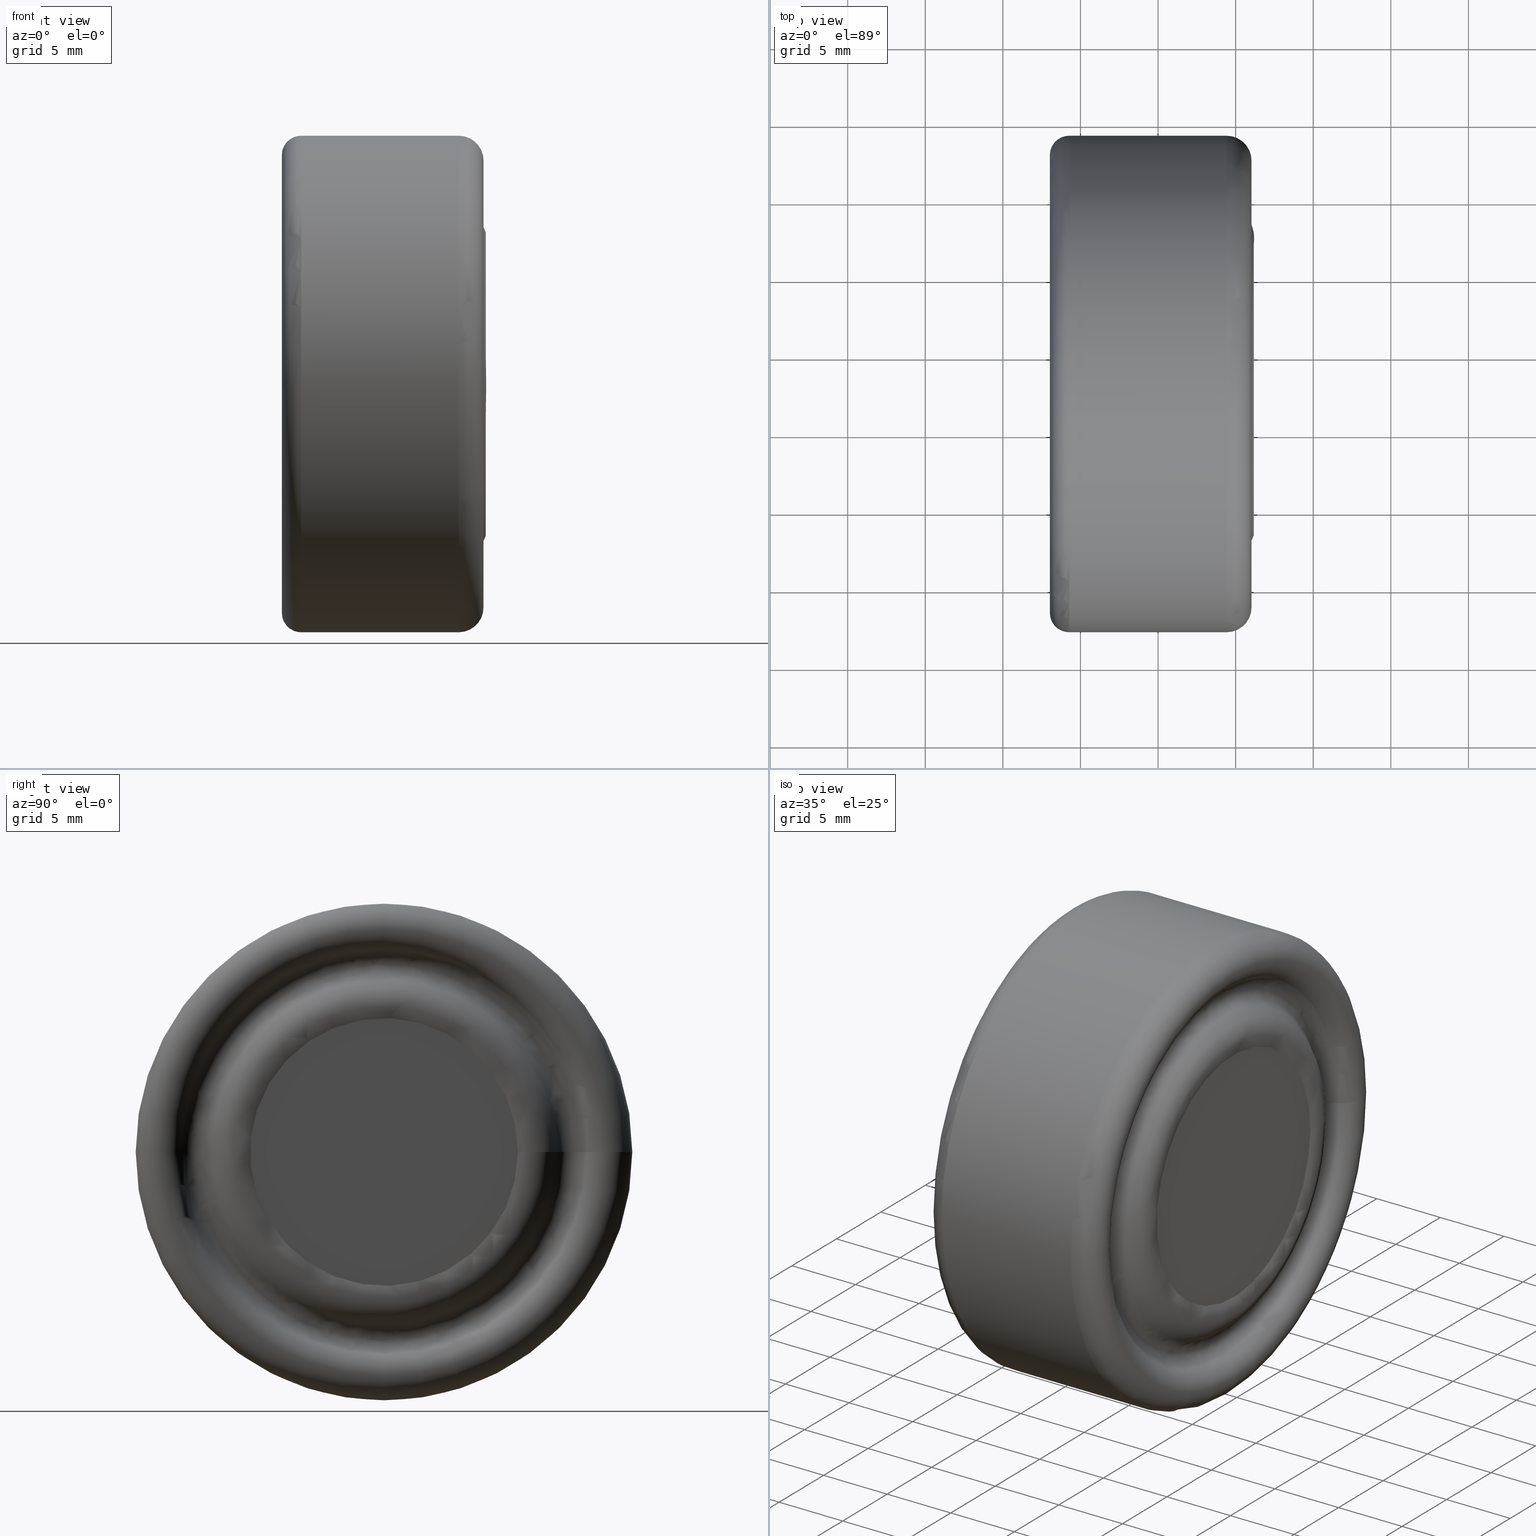
[diagram: canonical four-view strip — front | top / right | iso, engineering-drawing reading convention]
A machine part, canonical four-view strip (front | top / right | iso — engineering-drawing reading convention). The complete STEP part file that produces these views, byte-faithful:
ISO-10303-21;
HEADER;
/****************************************************************
 * Generated by software with PDE/Lib inside                    *
 * PDElib Version v51a, created Thu 12/14/2006                  *
 * International Technegroup Inc. (www.iti-oh.com)              *
 ****************************************************************/
FILE_DESCRIPTION((''),'2;1');
FILE_NAME('M:\\cad\\1PB\\2BTx\\2BTx.stp','2007-11-15T11:37:00',('Philipp'),(''),'Autodesk Inventor 2008','Autodesk Inventor 2008','');
FILE_SCHEMA(('AUTOMOTIVE_DESIGN { 1 0 10303 214 1 1 1 1 }'));
ENDSEC;
DATA;
#5=APPLICATION_CONTEXT('automotive design');
#6=APPLICATION_PROTOCOL_DEFINITION('International Standard','automotive_design',2001,#5);
#7=PRODUCT_CONTEXT('',#5,'mechanical');
#8=PRODUCT('2BT4_new_version','2BT4_new_version',$,(#7));
#9=PRODUCT_RELATED_PRODUCT_CATEGORY('part',$,(#8));
#10=PRODUCT_DEFINITION_FORMATION('',$,#8);
#11=PRODUCT_DEFINITION_CONTEXT('part definition',#5,'design');
#12=PRODUCT_DEFINITION('',$,#10,#11);
#18=(NAMED_UNIT(*)PLANE_ANGLE_UNIT()SI_UNIT($,.RADIAN.));
#19=DIMENSIONAL_EXPONENTS(0.0,0.0,0.0,0.0,0.0,0.0,0.0);
#20=PLANE_ANGLE_MEASURE_WITH_UNIT(PLANE_ANGLE_MEASURE(0.017453292500000),#18);
#24=(CONVERSION_BASED_UNIT('DEGREE',#20)NAMED_UNIT(#19)PLANE_ANGLE_UNIT());
#28=(NAMED_UNIT(*)SI_UNIT($,.STERADIAN.)SOLID_ANGLE_UNIT());
#32=(LENGTH_UNIT()NAMED_UNIT(*)SI_UNIT(.MILLI.,.METRE.));
#34=UNCERTAINTY_MEASURE_WITH_UNIT(LENGTH_MEASURE(0.010000000000000),#32,'DISTANCE_ACCURACY_VALUE','');
#36=(GEOMETRIC_REPRESENTATION_CONTEXT(3)GLOBAL_UNCERTAINTY_ASSIGNED_CONTEXT((#34))GLOBAL_UNIT_ASSIGNED_CONTEXT((#24,#28,#32))REPRESENTATION_CONTEXT('None','None'));
#37=AXIS2_PLACEMENT_3D('',#38,#39,#40);
#38=CARTESIAN_POINT('',(0.0,0.0,0.0));
#39=DIRECTION('',(0.0,0.0,1.0));
#40=DIRECTION('',(1.0,0.0,0.0));
#41=SHAPE_REPRESENTATION('',(#37),#36);
#42=PRODUCT_DEFINITION_SHAPE('','',#12);
#43=SHAPE_DEFINITION_REPRESENTATION(#42,#41);
#49=(NAMED_UNIT(*)PLANE_ANGLE_UNIT()SI_UNIT($,.RADIAN.));
#50=DIMENSIONAL_EXPONENTS(0.0,0.0,0.0,0.0,0.0,0.0,0.0);
#51=PLANE_ANGLE_MEASURE_WITH_UNIT(PLANE_ANGLE_MEASURE(0.017453292500000),#49);
#55=(CONVERSION_BASED_UNIT('DEGREE',#51)NAMED_UNIT(#50)PLANE_ANGLE_UNIT());
#59=(NAMED_UNIT(*)SI_UNIT($,.STERADIAN.)SOLID_ANGLE_UNIT());
#63=(LENGTH_UNIT()NAMED_UNIT(*)SI_UNIT(.MILLI.,.METRE.));
#65=UNCERTAINTY_MEASURE_WITH_UNIT(LENGTH_MEASURE(0.000001000000000),#63,'DISTANCE_ACCURACY_VALUE','');
#67=(GEOMETRIC_REPRESENTATION_CONTEXT(3)GLOBAL_UNCERTAINTY_ASSIGNED_CONTEXT((#65))GLOBAL_UNIT_ASSIGNED_CONTEXT((#55,#59,#63))REPRESENTATION_CONTEXT('','3D'));
#68=CARTESIAN_POINT('',(-0.582194819326649,3.167852655892098,0.0));
#69=DIRECTION('',(1.0,0.0,0.0));
#70=DIRECTION('',(0.0,0.0,-1.0));
#71=AXIS2_PLACEMENT_3D('',#68,#69,#70);
#72=TOROIDAL_SURFACE('',#71,14.391780379672067,1.608219620327933);
#73=CARTESIAN_POINT('',(0.160736446440259,16.133300857719991,0.0));
#74=VERTEX_POINT('',#73);
#75=CARTESIAN_POINT('',(0.160736446440259,3.167852655892097,0.0));
#76=DIRECTION('',(1.0,0.0,0.0));
#77=DIRECTION('',(0.0,1.0,0.0));
#78=AXIS2_PLACEMENT_3D('',#75,#76,#77);
#79=CIRCLE('',#78,12.965448201827897);
#80=EDGE_CURVE('',#74,#74,#79,.T.);
#81=ORIENTED_EDGE('',*,*,#80,.F.);
#82=EDGE_LOOP('',(#81));
#83=FACE_OUTER_BOUND('',#82,.T.);
#84=CARTESIAN_POINT('',(-0.582194819326650,19.167852655892101,0.0));
#85=VERTEX_POINT('',#84);
#86=CARTESIAN_POINT('',(-0.582194819326650,3.167852655892097,0.0));
#87=DIRECTION('',(1.0,0.0,0.0));
#88=DIRECTION('',(0.0,1.0,0.0));
#89=AXIS2_PLACEMENT_3D('',#86,#87,#88);
#90=CIRCLE('',#89,16.000000000000007);
#91=EDGE_CURVE('',#85,#85,#90,.T.);
#92=ORIENTED_EDGE('',*,*,#91,.T.);
#93=EDGE_LOOP('',(#92));
#94=FACE_BOUND('',#93,.T.);
#95=ADVANCED_FACE('',(#83,#94),#72,.T.);
#96=CARTESIAN_POINT('',(0.160736446440260,3.167852655892094,11.191645470142126));
#97=CARTESIAN_POINT('',(-0.377304716360990,3.167852655892094,11.471894074446068));
#98=CARTESIAN_POINT('',(-0.377304716360990,3.167852655892094,12.078546835985012));
#99=CARTESIAN_POINT('',(-0.377304716360990,3.167852655892094,12.685199597523956));
#100=CARTESIAN_POINT('',(0.160736446440260,3.167852655892094,12.965448201827899));
#101=CARTESIAN_POINT('',(0.160736446440260,-8.023792814250029,11.191645470142122));
#102=CARTESIAN_POINT('',(-0.377304716360990,-8.304041418553972,11.471894074446064));
#103=CARTESIAN_POINT('',(-0.377304716360990,-8.910694180092914,12.078546835985005));
#104=CARTESIAN_POINT('',(-0.377304716360990,-9.517346941631859,12.685199597523951));
#105=CARTESIAN_POINT('',(0.160736446440260,-9.797595545935801,12.965448201827893));
#106=CARTESIAN_POINT('',(0.160736446440260,-8.023792814250029,-1.776357E-015));
#107=CARTESIAN_POINT('',(-0.377304716360990,-8.304041418553972,-1.776357E-015));
#108=CARTESIAN_POINT('',(-0.377304716360990,-8.910694180092916,-1.776357E-015));
#109=CARTESIAN_POINT('',(-0.377304716360990,-9.517346941631860,-1.776357E-015));
#110=CARTESIAN_POINT('',(0.160736446440260,-9.797595545935803,-1.776357E-015));
#111=CARTESIAN_POINT('',(0.160736446440260,-8.023792814250026,-11.191645470142126));
#112=CARTESIAN_POINT('',(-0.377304716360990,-8.304041418553968,-11.471894074446068));
#113=CARTESIAN_POINT('',(-0.377304716360990,-8.910694180092911,-12.078546835985010));
#114=CARTESIAN_POINT('',(-0.377304716360990,-9.517346941631855,-12.685199597523955));
#115=CARTESIAN_POINT('',(0.160736446440260,-9.797595545935797,-12.965448201827897));
#116=CARTESIAN_POINT('',(0.160736446440260,3.167852655892098,-11.191645470142126));
#117=CARTESIAN_POINT('',(-0.377304716360990,3.167852655892098,-11.471894074446068));
#118=CARTESIAN_POINT('',(-0.377304716360990,3.167852655892098,-12.078546835985012));
#119=CARTESIAN_POINT('',(-0.377304716360990,3.167852655892098,-12.685199597523956));
#120=CARTESIAN_POINT('',(0.160736446440260,3.167852655892098,-12.965448201827899));
#121=CARTESIAN_POINT('',(0.160736446440260,14.359498126034222,-11.191645470142122));
#122=CARTESIAN_POINT('',(-0.377304716360990,14.639746730338162,-11.471894074446064));
#123=CARTESIAN_POINT('',(-0.377304716360990,15.246399491877106,-12.078546835985005));
#124=CARTESIAN_POINT('',(-0.377304716360990,15.853052253416051,-12.685199597523951));
#125=CARTESIAN_POINT('',(0.160736446440260,16.133300857719991,-12.965448201827893));
#126=CARTESIAN_POINT('',(0.160736446440260,14.359498126034222,1.776357E-015));
#127=CARTESIAN_POINT('',(-0.377304716360990,14.639746730338164,1.776357E-015));
#128=CARTESIAN_POINT('',(-0.377304716360990,15.246399491877108,1.776357E-015));
#129=CARTESIAN_POINT('',(-0.377304716360990,15.853052253416053,1.776357E-015));
#130=CARTESIAN_POINT('',(0.160736446440260,16.133300857719995,1.776357E-015));
#131=CARTESIAN_POINT('',(0.160736446440260,14.359498126034218,11.191645470142126));
#132=CARTESIAN_POINT('',(-0.377304716360990,14.639746730338160,11.471894074446068));
#133=CARTESIAN_POINT('',(-0.377304716360990,15.246399491877103,12.078546835985010));
#134=CARTESIAN_POINT('',(-0.377304716360990,15.853052253416047,12.685199597523955));
#135=CARTESIAN_POINT('',(0.160736446440260,16.133300857719991,12.965448201827897));
#136=CARTESIAN_POINT('',(0.160736446440260,3.167852655892094,11.191645470142126));
#137=CARTESIAN_POINT('',(-0.377304716360990,3.167852655892094,11.471894074446068));
#138=CARTESIAN_POINT('',(-0.377304716360990,3.167852655892094,12.078546835985012));
#139=CARTESIAN_POINT('',(-0.377304716360990,3.167852655892094,12.685199597523956));
#140=CARTESIAN_POINT('',(0.160736446440260,3.167852655892094,12.965448201827899));
#148=(BOUNDED_SURFACE()B_SPLINE_SURFACE(2,2,((#96,#101,#106,#111,#116,#121,#126,#131,#136),(#97,#102,#107,#112,#117,#122,#127,#132,#137),(#98,#103,#108,#113,#118,#123,#128,#133,#138),(#99,#104,#109,#114,#119,#124,#129,#134,#139),(#100,#105,#110,#115,#120,#125,#130,#135,#140)),.UNSPECIFIED.,.F.,.T.,.U.)B_SPLINE_SURFACE_WITH_KNOTS((3,2,3),(3,2,2,2,3),(-2.661390091965638,-1.570796326794897,-0.480202561624155),(0.0,1.570796326794897,3.141592653589793,4.712388980384690,6.283185307179586),.UNSPECIFIED.)GEOMETRIC_REPRESENTATION_ITEM()RATIONAL_B_SPLINE_SURFACE(((1.0,0.707106781186548,1.0,0.707106781186548,1.0,0.707106781186548,1.0,0.707106781186548,1.0),(0.854973343794633,0.604557449130922,0.854973343794633,0.604557449130922,0.854973343794633,0.604557449130922,0.854973343794633,0.604557449130922,0.854973343794633),(1.0,0.707106781186548,1.0,0.707106781186548,1.0,0.707106781186548,1.0,0.707106781186548,1.0),(0.854973343794632,0.604557449130922,0.854973343794632,0.604557449130922,0.854973343794632,0.604557449130922,0.854973343794632,0.604557449130922,0.854973343794632),(1.0,0.707106781186548,1.0,0.707106781186548,1.0,0.707106781186548,1.0,0.707106781186548,1.0)))REPRESENTATION_ITEM('')SURFACE());
#149=CARTESIAN_POINT('',(0.147504700381299,14.366516596496592,0.0));
#150=VERTEX_POINT('',#149);
#151=CARTESIAN_POINT('',(0.147504700381299,3.167852655892097,0.0));
#152=DIRECTION('',(1.0,0.0,0.0));
#153=DIRECTION('',(0.0,1.0,0.0));
#154=AXIS2_PLACEMENT_3D('',#151,#152,#153);
#155=CIRCLE('',#154,11.198663940604497);
#156=EDGE_CURVE('',#150,#150,#155,.T.);
#157=ORIENTED_EDGE('',*,*,#156,.F.);
#158=EDGE_LOOP('',(#157));
#159=FACE_OUTER_BOUND('',#158,.T.);
#160=ORIENTED_EDGE('',*,*,#80,.T.);
#161=EDGE_LOOP('',(#160));
#162=FACE_BOUND('',#161,.T.);
#163=ADVANCED_FACE('',(#159,#162),#148,.T.);
#164=CARTESIAN_POINT('',(-0.802876466134123,3.167852655892097,0.0));
#165=DIRECTION('',(1.0,0.0,0.0));
#166=DIRECTION('',(0.0,0.0,-1.0));
#167=AXIS2_PLACEMENT_3D('',#164,#165,#166);
#168=TOROIDAL_SURFACE('',#167,9.438898149843467,2.000000000000000);
#169=CARTESIAN_POINT('',(1.026024801001286,11.797355874277198,0.0));
#170=VERTEX_POINT('',#169);
#171=CARTESIAN_POINT('',(1.026024801001286,3.167852655892097,0.0));
#172=DIRECTION('',(1.0,0.0,0.0));
#173=DIRECTION('',(0.0,1.0,0.0));
#174=AXIS2_PLACEMENT_3D('',#171,#172,#173);
#175=CIRCLE('',#174,8.629503218385100);
#176=EDGE_CURVE('',#170,#170,#175,.T.);
#177=ORIENTED_EDGE('',*,*,#176,.F.);
#178=EDGE_LOOP('',(#177));
#179=FACE_OUTER_BOUND('',#178,.T.);
#180=ORIENTED_EDGE('',*,*,#156,.T.);
#181=EDGE_LOOP('',(#180));
#182=FACE_BOUND('',#181,.T.);
#183=ADVANCED_FACE('',(#179,#182),#168,.T.);
#184=CARTESIAN_POINT('',(1.026024801001286,7.482604265084647,0.0));
#185=DIRECTION('',(1.0,0.0,0.0));
#186=DIRECTION('',(0.0,0.0,-1.0));
#187=AXIS2_PLACEMENT_3D('',#184,#185,#186);
#188=PLANE('',#187);
#189=ORIENTED_EDGE('',*,*,#176,.T.);
#190=EDGE_LOOP('',(#189));
#191=FACE_OUTER_BOUND('',#190,.T.);
#192=ADVANCED_FACE('',(#191),#188,.T.);
#193=CARTESIAN_POINT('',(0.026024801001286,7.571678515661020,0.0));
#194=DIRECTION('',(-1.0,0.0,0.0));
#195=DIRECTION('',(0.0,0.0,1.0));
#196=AXIS2_PLACEMENT_3D('',#193,#194,#195);
#197=PLANE('',#196);
#198=CARTESIAN_POINT('',(0.026024801001286,11.975504375429944,0.0));
#199=VERTEX_POINT('',#198);
#200=CARTESIAN_POINT('',(0.026024801001286,3.167852655892097,0.0));
#201=DIRECTION('',(1.0,0.0,0.0));
#202=DIRECTION('',(0.0,1.0,0.0));
#203=AXIS2_PLACEMENT_3D('',#200,#201,#202);
#204=CIRCLE('',#203,8.807651719537846);
#205=EDGE_CURVE('',#199,#199,#204,.T.);
#206=ORIENTED_EDGE('',*,*,#205,.F.);
#207=EDGE_LOOP('',(#206));
#208=FACE_OUTER_BOUND('',#207,.T.);
#209=ADVANCED_FACE('',(#208),#197,.T.);
#210=CARTESIAN_POINT('',(0.276024801001278,3.167852655892097,0.0));
#211=DIRECTION('',(1.0,0.0,0.0));
#212=DIRECTION('',(0.0,0.0,-1.0));
#213=AXIS2_PLACEMENT_3D('',#210,#211,#212);
#214=TOROIDAL_SURFACE('',#213,8.807651719537846,0.249999999999992);
#215=CARTESIAN_POINT('',(0.060244547574203,12.101753661491069,0.0));
#216=VERTEX_POINT('',#215);
#217=CARTESIAN_POINT('',(0.060244547574203,3.167852655892097,0.0));
#218=DIRECTION('',(1.0,0.0,0.0));
#219=DIRECTION('',(0.0,1.0,0.0));
#220=AXIS2_PLACEMENT_3D('',#217,#218,#219);
#221=CIRCLE('',#220,8.933901005598971);
#222=EDGE_CURVE('',#216,#216,#221,.T.);
#223=ORIENTED_EDGE('',*,*,#222,.F.);
#224=EDGE_LOOP('',(#223));
#225=FACE_OUTER_BOUND('',#224,.T.);
#226=ORIENTED_EDGE('',*,*,#205,.T.);
#227=EDGE_LOOP('',(#226));
#228=FACE_BOUND('',#227,.T.);
#229=ADVANCED_FACE('',(#225,#228),#214,.T.);
#230=CARTESIAN_POINT('',(-0.327685882876412,3.167852655892096,10.318781045223973));
#231=CARTESIAN_POINT('',(0.197123533865870,3.167852655892096,10.035351859192282));
#232=CARTESIAN_POINT('',(0.197123533865870,3.167852655892096,9.438898149843467));
#233=CARTESIAN_POINT('',(0.197123533865870,3.167852655892096,8.842444440494653));
#234=CARTESIAN_POINT('',(-0.327685882876412,3.167852655892096,8.559015254462961));
#235=CARTESIAN_POINT('',(-0.327685882876412,-7.150928389331876,10.318781045223970));
#236=CARTESIAN_POINT('',(0.197123533865870,-6.867499203300183,10.035351859192279));
#237=CARTESIAN_POINT('',(0.197123533865870,-6.271045493951370,9.438898149843464));
#238=CARTESIAN_POINT('',(0.197123533865870,-5.674591784602555,8.842444440494649));
#239=CARTESIAN_POINT('',(-0.327685882876412,-5.391162598570864,8.559015254462958));
#240=CARTESIAN_POINT('',(-0.327685882876412,-7.150928389331877,-1.332268E-015));
#241=CARTESIAN_POINT('',(0.197123533865870,-6.867499203300184,-1.332268E-015));
#242=CARTESIAN_POINT('',(0.197123533865870,-6.271045493951371,-1.332268E-015));
#243=CARTESIAN_POINT('',(0.197123533865870,-5.674591784602556,-1.332268E-015));
#244=CARTESIAN_POINT('',(-0.327685882876412,-5.391162598570864,-1.332268E-015));
#245=CARTESIAN_POINT('',(-0.327685882876412,-7.150928389331873,-10.318781045223973));
#246=CARTESIAN_POINT('',(0.197123533865870,-6.867499203300183,-10.035351859192282));
#247=CARTESIAN_POINT('',(0.197123533865870,-6.271045493951367,-9.438898149843467));
#248=CARTESIAN_POINT('',(0.197123533865870,-5.674591784602553,-8.842444440494653));
#249=CARTESIAN_POINT('',(-0.327685882876412,-5.391162598570862,-8.559015254462961));
#250=CARTESIAN_POINT('',(-0.327685882876412,3.167852655892098,-10.318781045223973));
#251=CARTESIAN_POINT('',(0.197123533865870,3.167852655892098,-10.035351859192282));
#252=CARTESIAN_POINT('',(0.197123533865870,3.167852655892098,-9.438898149843467));
#253=CARTESIAN_POINT('',(0.197123533865870,3.167852655892098,-8.842444440494653));
#254=CARTESIAN_POINT('',(-0.327685882876412,3.167852655892098,-8.559015254462961));
#255=CARTESIAN_POINT('',(-0.327685882876412,13.486633701116073,-10.318781045223970));
#256=CARTESIAN_POINT('',(0.197123533865870,13.203204515084380,-10.035351859192279));
#257=CARTESIAN_POINT('',(0.197123533865870,12.606750805735564,-9.438898149843464));
#258=CARTESIAN_POINT('',(0.197123533865870,12.010297096386749,-8.842444440494649));
#259=CARTESIAN_POINT('',(-0.327685882876412,11.726867910355059,-8.559015254462958));
#260=CARTESIAN_POINT('',(-0.327685882876412,13.486633701116070,1.332268E-015));
#261=CARTESIAN_POINT('',(0.197123533865870,13.203204515084380,1.332268E-015));
#262=CARTESIAN_POINT('',(0.197123533865870,12.606750805735565,1.332268E-015));
#263=CARTESIAN_POINT('',(0.197123533865870,12.010297096386752,1.332268E-015));
#264=CARTESIAN_POINT('',(-0.327685882876412,11.726867910355057,1.332268E-015));
#265=CARTESIAN_POINT('',(-0.327685882876412,13.486633701116068,10.318781045223973));
#266=CARTESIAN_POINT('',(0.197123533865870,13.203204515084373,10.035351859192282));
#267=CARTESIAN_POINT('',(0.197123533865870,12.606750805735562,9.438898149843467));
#268=CARTESIAN_POINT('',(0.197123533865870,12.010297096386745,8.842444440494653));
#269=CARTESIAN_POINT('',(-0.327685882876412,11.726867910355056,8.559015254462961));
#270=CARTESIAN_POINT('',(-0.327685882876412,3.167852655892096,10.318781045223973));
#271=CARTESIAN_POINT('',(0.197123533865870,3.167852655892096,10.035351859192282));
#272=CARTESIAN_POINT('',(0.197123533865870,3.167852655892096,9.438898149843467));
#273=CARTESIAN_POINT('',(0.197123533865870,3.167852655892096,8.842444440494653));
#274=CARTESIAN_POINT('',(-0.327685882876412,3.167852655892096,8.559015254462961));
#282=(BOUNDED_SURFACE()B_SPLINE_SURFACE(2,2,((#230,#235,#240,#245,#250,#255,#260,#265,#270),(#231,#236,#241,#246,#251,#256,#261,#266,#271),(#232,#237,#242,#247,#252,#257,#262,#267,#272),(#233,#238,#243,#248,#253,#258,#263,#268,#273),(#234,#239,#244,#249,#254,#259,#264,#269,#274)),.UNSPECIFIED.,.F.,.T.,.U.)B_SPLINE_SURFACE_WITH_KNOTS((3,2,3),(3,2,2,2,3),(0.495180619758916,1.570796326794897,2.646412033830877),(0.0,1.570796326794897,3.141592653589793,4.712388980384690,6.283185307179586),.UNSPECIFIED.)GEOMETRIC_REPRESENTATION_ITEM()RATIONAL_B_SPLINE_SURFACE(((1.0,0.707106781186548,1.0,0.707106781186548,1.0,0.707106781186548,1.0,0.707106781186548,1.0),(0.858833681005153,0.607287119750148,0.858833681005153,0.607287119750148,0.858833681005153,0.607287119750148,0.858833681005153,0.607287119750148,0.858833681005153),(1.0,0.707106781186548,1.0,0.707106781186548,1.0,0.707106781186548,1.0,0.707106781186548,1.0),(0.858833681005152,0.607287119750147,0.858833681005152,0.607287119750147,0.858833681005152,0.607287119750147,0.858833681005152,0.607287119750147,0.858833681005152),(1.0,0.707106781186548,1.0,0.707106781186548,1.0,0.707106781186548,1.0,0.707106781186548,1.0)))REPRESENTATION_ITEM('')SURFACE());
#283=CARTESIAN_POINT('',(-0.327685882876412,13.486633701116080,0.0));
#284=VERTEX_POINT('',#283);
#285=CARTESIAN_POINT('',(-0.327685882876412,3.167852655892097,0.0));
#286=DIRECTION('',(1.0,0.0,0.0));
#287=DIRECTION('',(0.0,1.0,0.0));
#288=AXIS2_PLACEMENT_3D('',#285,#286,#287);
#289=CIRCLE('',#288,10.318781045223982);
#290=EDGE_CURVE('',#284,#284,#289,.T.);
#291=ORIENTED_EDGE('',*,*,#290,.F.);
#292=EDGE_LOOP('',(#291));
#293=FACE_OUTER_BOUND('',#292,.T.);
#294=ORIENTED_EDGE('',*,*,#222,.T.);
#295=EDGE_LOOP('',(#294));
#296=FACE_BOUND('',#295,.T.);
#297=ADVANCED_FACE('',(#293,#296),#282,.T.);
#298=CARTESIAN_POINT('',(0.622695283639010,3.167852655892096,0.0));
#299=DIRECTION('',(1.0,0.0,0.0));
#300=DIRECTION('',(0.0,0.0,-1.0));
#301=AXIS2_PLACEMENT_3D('',#298,#299,#300);
#302=TOROIDAL_SURFACE('',#301,12.078546835985012,1.999999999999997);
#303=CARTESIAN_POINT('',(-0.301222390758492,17.020202223562883,0.0));
#304=VERTEX_POINT('',#303);
#305=CARTESIAN_POINT('',(-0.301222390758492,3.167852655892097,0.0));
#306=DIRECTION('',(1.0,0.0,0.0));
#307=DIRECTION('',(0.0,1.0,0.0));
#308=AXIS2_PLACEMENT_3D('',#305,#306,#307);
#309=CIRCLE('',#308,13.852349567670785);
#310=EDGE_CURVE('',#304,#304,#309,.T.);
#311=ORIENTED_EDGE('',*,*,#310,.F.);
#312=EDGE_LOOP('',(#311));
#313=FACE_OUTER_BOUND('',#312,.T.);
#314=ORIENTED_EDGE('',*,*,#290,.T.);
#315=EDGE_LOOP('',(#314));
#316=FACE_BOUND('',#315,.T.);
#317=ADVANCED_FACE('',(#313,#316),#302,.T.);
#318=CARTESIAN_POINT('',(-0.582194819326650,3.167852655892097,15.000000000000002));
#319=CARTESIAN_POINT('',(0.026024801001286,3.167852655892097,15.000000000000002));
#320=CARTESIAN_POINT('',(0.026024801001286,3.167852655892097,14.391780379672067));
#321=CARTESIAN_POINT('',(0.026024801001286,3.167852655892096,13.783560759344132));
#322=CARTESIAN_POINT('',(-0.582194819326650,3.167852655892097,13.783560759344132));
#323=CARTESIAN_POINT('',(-0.582194819326650,-11.832147344107904,14.999999999999996));
#324=CARTESIAN_POINT('',(0.026024801001286,-11.832147344107902,14.999999999999996));
#325=CARTESIAN_POINT('',(0.026024801001286,-11.223927723779967,14.391780379672062));
#326=CARTESIAN_POINT('',(0.026024801001286,-10.615708103452032,13.783560759344127));
#327=CARTESIAN_POINT('',(-0.582194819326650,-10.615708103452032,13.783560759344127));
#328=CARTESIAN_POINT('',(-0.582194819326650,-11.832147344107904,-1.776357E-015));
#329=CARTESIAN_POINT('',(0.026024801001286,-11.832147344107904,-1.776357E-015));
#330=CARTESIAN_POINT('',(0.026024801001286,-11.223927723779969,-1.776357E-015));
#331=CARTESIAN_POINT('',(0.026024801001286,-10.615708103452034,-1.776357E-015));
#332=CARTESIAN_POINT('',(-0.582194819326650,-10.615708103452034,-1.776357E-015));
#333=CARTESIAN_POINT('',(-0.582194819326650,-11.832147344107899,-15.0));
#334=CARTESIAN_POINT('',(0.026024801001286,-11.832147344107899,-15.0));
#335=CARTESIAN_POINT('',(0.026024801001286,-11.223927723779964,-14.391780379672065));
#336=CARTESIAN_POINT('',(0.026024801001286,-10.615708103452029,-13.783560759344130));
#337=CARTESIAN_POINT('',(-0.582194819326650,-10.615708103452029,-13.783560759344130));
#338=CARTESIAN_POINT('',(-0.582194819326650,3.167852655892100,-15.000000000000002));
#339=CARTESIAN_POINT('',(0.026024801001286,3.167852655892100,-15.000000000000002));
#340=CARTESIAN_POINT('',(0.026024801001286,3.167852655892100,-14.391780379672067));
#341=CARTESIAN_POINT('',(0.026024801001286,3.167852655892100,-13.783560759344132));
#342=CARTESIAN_POINT('',(-0.582194819326650,3.167852655892100,-13.783560759344132));
#343=CARTESIAN_POINT('',(-0.582194819326650,18.167852655892098,-14.999999999999996));
#344=CARTESIAN_POINT('',(0.026024801001286,18.167852655892098,-14.999999999999996));
#345=CARTESIAN_POINT('',(0.026024801001286,17.559633035564161,-14.391780379672062));
#346=CARTESIAN_POINT('',(0.026024801001286,16.951413415236228,-13.783560759344127));
#347=CARTESIAN_POINT('',(-0.582194819326650,16.951413415236228,-13.783560759344127));
#348=CARTESIAN_POINT('',(-0.582194819326650,18.167852655892101,1.776357E-015));
#349=CARTESIAN_POINT('',(0.026024801001286,18.167852655892101,1.776357E-015));
#350=CARTESIAN_POINT('',(0.026024801001286,17.559633035564165,1.776357E-015));
#351=CARTESIAN_POINT('',(0.026024801001286,16.951413415236232,1.776357E-015));
#352=CARTESIAN_POINT('',(-0.582194819326650,16.951413415236232,1.776357E-015));
#353=CARTESIAN_POINT('',(-0.582194819326650,18.167852655892098,15.0));
#354=CARTESIAN_POINT('',(0.026024801001286,18.167852655892098,15.0));
#355=CARTESIAN_POINT('',(0.026024801001286,17.559633035564161,14.391780379672065));
#356=CARTESIAN_POINT('',(0.026024801001286,16.951413415236228,13.783560759344130));
#357=CARTESIAN_POINT('',(-0.582194819326650,16.951413415236228,13.783560759344130));
#358=CARTESIAN_POINT('',(-0.582194819326650,3.167852655892097,15.000000000000002));
#359=CARTESIAN_POINT('',(0.026024801001286,3.167852655892097,15.000000000000002));
#360=CARTESIAN_POINT('',(0.026024801001286,3.167852655892097,14.391780379672067));
#361=CARTESIAN_POINT('',(0.026024801001286,3.167852655892096,13.783560759344132));
#362=CARTESIAN_POINT('',(-0.582194819326650,3.167852655892097,13.783560759344132));
#370=(BOUNDED_SURFACE()B_SPLINE_SURFACE(2,2,((#318,#323,#328,#333,#338,#343,#348,#353,#358),(#319,#324,#329,#334,#339,#344,#349,#354,#359),(#320,#325,#330,#335,#340,#345,#350,#355,#360),(#321,#326,#331,#336,#341,#346,#351,#356,#361),(#322,#327,#332,#337,#342,#347,#352,#357,#362)),.UNSPECIFIED.,.F.,.T.,.U.)B_SPLINE_SURFACE_WITH_KNOTS((3,2,3),(3,2,2,2,3),(-1.095219E-015,1.570796326794897,3.141592653589794),(0.0,1.570796326794897,3.141592653589793,4.712388980384690,6.283185307179586),.UNSPECIFIED.)GEOMETRIC_REPRESENTATION_ITEM()RATIONAL_B_SPLINE_SURFACE(((1.0,0.707106781186548,1.0,0.707106781186548,1.0,0.707106781186548,1.0,0.707106781186548,1.0),(0.707106781186547,0.500000000000000,0.707106781186547,0.500000000000000,0.707106781186547,0.500000000000000,0.707106781186547,0.500000000000000,0.707106781186547),(1.0,0.707106781186548,1.0,0.707106781186548,1.0,0.707106781186548,1.0,0.707106781186548,1.0),(0.707106781186548,0.500000000000000,0.707106781186548,0.500000000000000,0.707106781186548,0.500000000000000,0.707106781186548,0.500000000000000,0.707106781186548),(1.0,0.707106781186548,1.0,0.707106781186548,1.0,0.707106781186548,1.0,0.707106781186548,1.0)))REPRESENTATION_ITEM('')SURFACE());
#371=CARTESIAN_POINT('',(-0.582194819326649,18.167852655892098,0.0));
#372=VERTEX_POINT('',#371);
#373=CARTESIAN_POINT('',(-0.582194819326649,3.167852655892097,0.0));
#374=DIRECTION('',(1.0,0.0,0.0));
#375=DIRECTION('',(0.0,1.0,0.0));
#376=AXIS2_PLACEMENT_3D('',#373,#374,#375);
#377=CIRCLE('',#376,15.0);
#378=EDGE_CURVE('',#372,#372,#377,.T.);
#379=ORIENTED_EDGE('',*,*,#378,.F.);
#380=EDGE_LOOP('',(#379));
#381=FACE_OUTER_BOUND('',#380,.T.);
#382=ORIENTED_EDGE('',*,*,#310,.T.);
#383=EDGE_LOOP('',(#382));
#384=FACE_BOUND('',#383,.T.);
#385=ADVANCED_FACE('',(#381,#384),#370,.T.);
#386=CARTESIAN_POINT('',(-5.653085009162683,3.167852655892097,0.0));
#387=DIRECTION('',(1.0,0.0,0.0));
#388=DIRECTION('',(0.0,1.0,0.0));
#389=AXIS2_PLACEMENT_3D('',#386,#387,#388);
#390=CYLINDRICAL_SURFACE('',#389,15.0);
#391=CARTESIAN_POINT('',(-10.723975198998716,18.167852655892098,0.0));
#392=VERTEX_POINT('',#391);
#393=CARTESIAN_POINT('',(-10.723975198998716,3.167852655892097,0.0));
#394=DIRECTION('',(1.0,0.0,0.0));
#395=DIRECTION('',(0.0,1.0,0.0));
#396=AXIS2_PLACEMENT_3D('',#393,#394,#395);
#397=CIRCLE('',#396,15.0);
#398=EDGE_CURVE('',#392,#392,#397,.T.);
#399=ORIENTED_EDGE('',*,*,#398,.F.);
#400=EDGE_LOOP('',(#399));
#401=FACE_OUTER_BOUND('',#400,.T.);
#402=ORIENTED_EDGE('',*,*,#378,.T.);
#403=EDGE_LOOP('',(#402));
#404=FACE_BOUND('',#403,.T.);
#405=ADVANCED_FACE('',(#401,#404),#390,.F.);
#406=CARTESIAN_POINT('',(-10.723975198998716,3.167852655892094,14.500000000000007));
#407=CARTESIAN_POINT('',(-10.973975198998708,3.167852655892095,14.500000000000009));
#408=CARTESIAN_POINT('',(-10.973975198998708,3.167852655892094,14.750000000000000));
#409=CARTESIAN_POINT('',(-10.973975198998708,3.167852655892095,14.999999999999993));
#410=CARTESIAN_POINT('',(-10.723975198998716,3.167852655892094,14.999999999999993));
#411=CARTESIAN_POINT('',(-10.723975198998716,-11.332147344107909,14.500000000000000));
#412=CARTESIAN_POINT('',(-10.973975198998708,-11.332147344107909,14.500000000000002));
#413=CARTESIAN_POINT('',(-10.973975198998708,-11.582147344107900,14.749999999999995));
#414=CARTESIAN_POINT('',(-10.973975198998708,-11.832147344107895,14.999999999999988));
#415=CARTESIAN_POINT('',(-10.723975198998716,-11.832147344107895,14.999999999999988));
#416=CARTESIAN_POINT('',(-10.723975198998716,-11.332147344107911,-1.776357E-015));
#417=CARTESIAN_POINT('',(-10.973975198998708,-11.332147344107911,-1.776357E-015));
#418=CARTESIAN_POINT('',(-10.973975198998708,-11.582147344107904,-1.776357E-015));
#419=CARTESIAN_POINT('',(-10.973975198998708,-11.832147344107895,-1.776357E-015));
#420=CARTESIAN_POINT('',(-10.723975198998716,-11.832147344107897,-1.776357E-015));
#421=CARTESIAN_POINT('',(-10.723975198998716,-11.332147344107907,-14.500000000000005));
#422=CARTESIAN_POINT('',(-10.973975198998708,-11.332147344107906,-14.500000000000005));
#423=CARTESIAN_POINT('',(-10.973975198998708,-11.582147344107899,-14.749999999999998));
#424=CARTESIAN_POINT('',(-10.973975198998708,-11.832147344107891,-14.999999999999991));
#425=CARTESIAN_POINT('',(-10.723975198998716,-11.832147344107891,-14.999999999999991));
#426=CARTESIAN_POINT('',(-10.723975198998716,3.167852655892098,-14.500000000000007));
#427=CARTESIAN_POINT('',(-10.973975198998708,3.167852655892098,-14.500000000000009));
#428=CARTESIAN_POINT('',(-10.973975198998708,3.167852655892098,-14.750000000000000));
#429=CARTESIAN_POINT('',(-10.973975198998708,3.167852655892098,-14.999999999999993));
#430=CARTESIAN_POINT('',(-10.723975198998716,3.167852655892098,-14.999999999999993));
#431=CARTESIAN_POINT('',(-10.723975198998716,17.667852655892098,-14.500000000000000));
#432=CARTESIAN_POINT('',(-10.973975198998708,17.667852655892098,-14.500000000000002));
#433=CARTESIAN_POINT('',(-10.973975198998708,17.917852655892091,-14.749999999999995));
#434=CARTESIAN_POINT('',(-10.973975198998708,18.167852655892084,-14.999999999999988));
#435=CARTESIAN_POINT('',(-10.723975198998716,18.167852655892084,-14.999999999999988));
#436=CARTESIAN_POINT('',(-10.723975198998716,17.667852655892105,1.776357E-015));
#437=CARTESIAN_POINT('',(-10.973975198998708,17.667852655892105,1.776357E-015));
#438=CARTESIAN_POINT('',(-10.973975198998708,17.917852655892098,1.776357E-015));
#439=CARTESIAN_POINT('',(-10.973975198998708,18.167852655892091,1.776357E-015));
#440=CARTESIAN_POINT('',(-10.723975198998716,18.167852655892091,1.776357E-015));
#441=CARTESIAN_POINT('',(-10.723975198998716,17.667852655892098,14.500000000000005));
#442=CARTESIAN_POINT('',(-10.973975198998708,17.667852655892098,14.500000000000005));
#443=CARTESIAN_POINT('',(-10.973975198998708,17.917852655892091,14.749999999999998));
#444=CARTESIAN_POINT('',(-10.973975198998708,18.167852655892084,14.999999999999991));
#445=CARTESIAN_POINT('',(-10.723975198998716,18.167852655892084,14.999999999999991));
#446=CARTESIAN_POINT('',(-10.723975198998716,3.167852655892094,14.500000000000007));
#447=CARTESIAN_POINT('',(-10.973975198998708,3.167852655892095,14.500000000000009));
#448=CARTESIAN_POINT('',(-10.973975198998708,3.167852655892094,14.750000000000000));
#449=CARTESIAN_POINT('',(-10.973975198998708,3.167852655892095,14.999999999999993));
#450=CARTESIAN_POINT('',(-10.723975198998716,3.167852655892094,14.999999999999993));
#458=(BOUNDED_SURFACE()B_SPLINE_SURFACE(2,2,((#406,#411,#416,#421,#426,#431,#436,#441,#446),(#407,#412,#417,#422,#427,#432,#437,#442,#447),(#408,#413,#418,#423,#428,#433,#438,#443,#448),(#409,#414,#419,#424,#429,#434,#439,#444,#449),(#410,#415,#420,#425,#430,#435,#440,#445,#450)),.UNSPECIFIED.,.F.,.T.,.U.)B_SPLINE_SURFACE_WITH_KNOTS((3,2,3),(3,2,2,2,3),(-3.141592653589793,-1.570796326794897,0.0),(0.0,1.570796326794897,3.141592653589793,4.712388980384690,6.283185307179586),.UNSPECIFIED.)GEOMETRIC_REPRESENTATION_ITEM()RATIONAL_B_SPLINE_SURFACE(((1.0,0.707106781186548,1.0,0.707106781186548,1.0,0.707106781186548,1.0,0.707106781186548,1.0),(0.707106781186532,0.499999999999989,0.707106781186532,0.499999999999989,0.707106781186532,0.499999999999989,0.707106781186532,0.499999999999989,0.707106781186532),(1.0,0.707106781186548,1.0,0.707106781186548,1.0,0.707106781186548,1.0,0.707106781186548,1.0),(0.707106781186532,0.499999999999989,0.707106781186532,0.499999999999989,0.707106781186532,0.499999999999989,0.707106781186532,0.499999999999989,0.707106781186532),(1.0,0.707106781186548,1.0,0.707106781186548,1.0,0.707106781186548,1.0,0.707106781186548,1.0)))REPRESENTATION_ITEM('')SURFACE());
#459=CARTESIAN_POINT('',(-10.973975198998717,17.917852655892098,0.0));
#460=VERTEX_POINT('',#459);
#461=CARTESIAN_POINT('',(-10.973975198998717,3.167852655892097,0.0));
#462=DIRECTION('',(1.0,0.0,0.0));
#463=DIRECTION('',(0.0,1.0,0.0));
#464=AXIS2_PLACEMENT_3D('',#461,#462,#463);
#465=CIRCLE('',#464,14.750000000000000);
#466=EDGE_CURVE('',#460,#460,#465,.T.);
#467=ORIENTED_EDGE('',*,*,#466,.F.);
#468=EDGE_LOOP('',(#467));
#469=FACE_OUTER_BOUND('',#468,.T.);
#470=ORIENTED_EDGE('',*,*,#398,.T.);
#471=EDGE_LOOP('',(#470));
#472=FACE_BOUND('',#471,.T.);
#473=ADVANCED_FACE('',(#469,#472),#458,.T.);
#474=CARTESIAN_POINT('',(-10.973975198998716,17.292852655892098,0.0));
#475=DIRECTION('',(1.0,0.0,0.0));
#476=DIRECTION('',(0.0,0.0,-1.0));
#477=AXIS2_PLACEMENT_3D('',#474,#475,#476);
#478=PLANE('',#477);
#479=ORIENTED_EDGE('',*,*,#466,.T.);
#480=EDGE_LOOP('',(#479));
#481=FACE_OUTER_BOUND('',#480,.T.);
#482=CARTESIAN_POINT('',(-10.973975198998716,16.667852655892098,0.0));
#483=VERTEX_POINT('',#482);
#484=CARTESIAN_POINT('',(-10.973975198998716,3.167852655892097,0.0));
#485=DIRECTION('',(1.0,0.0,0.0));
#486=DIRECTION('',(0.0,1.0,0.0));
#487=AXIS2_PLACEMENT_3D('',#484,#485,#486);
#488=CIRCLE('',#487,13.500000000000000);
#489=EDGE_CURVE('',#483,#483,#488,.T.);
#490=ORIENTED_EDGE('',*,*,#489,.F.);
#491=EDGE_LOOP('',(#490));
#492=FACE_BOUND('',#491,.T.);
#493=ADVANCED_FACE('',(#481,#492),#478,.T.);
#494=CARTESIAN_POINT('',(-11.473975198998716,3.167852655892097,0.0));
#495=DIRECTION('',(1.0,0.0,0.0));
#496=DIRECTION('',(0.0,1.0,0.0));
#497=AXIS2_PLACEMENT_3D('',#494,#495,#496);
#498=CYLINDRICAL_SURFACE('',#497,13.500000000000000);
#499=CARTESIAN_POINT('',(-11.973975198998716,16.667852655892098,0.0));
#500=VERTEX_POINT('',#499);
#501=CARTESIAN_POINT('',(-11.973975198998716,3.167852655892097,0.0));
#502=DIRECTION('',(1.0,0.0,0.0));
#503=DIRECTION('',(0.0,1.0,0.0));
#504=AXIS2_PLACEMENT_3D('',#501,#502,#503);
#505=CIRCLE('',#504,13.500000000000000);
#506=EDGE_CURVE('',#500,#500,#505,.T.);
#507=ORIENTED_EDGE('',*,*,#506,.F.);
#508=EDGE_LOOP('',(#507));
#509=FACE_OUTER_BOUND('',#508,.T.);
#510=ORIENTED_EDGE('',*,*,#489,.T.);
#511=EDGE_LOOP('',(#510));
#512=FACE_BOUND('',#511,.T.);
#513=ADVANCED_FACE('',(#509,#512),#498,.F.);
#514=CARTESIAN_POINT('',(-11.973975198998716,17.292852655892098,0.0));
#515=DIRECTION('',(-1.0,0.0,0.0));
#516=DIRECTION('',(0.0,0.0,1.0));
#517=AXIS2_PLACEMENT_3D('',#514,#515,#516);
#518=PLANE('',#517);
#519=CARTESIAN_POINT('',(-11.973975198998719,17.917852655892098,0.0));
#520=VERTEX_POINT('',#519);
#521=CARTESIAN_POINT('',(-11.973975198998719,3.167852655892097,0.0));
#522=DIRECTION('',(1.0,0.0,0.0));
#523=DIRECTION('',(0.0,1.0,0.0));
#524=AXIS2_PLACEMENT_3D('',#521,#522,#523);
#525=CIRCLE('',#524,14.750000000000000);
#526=EDGE_CURVE('',#520,#520,#525,.T.);
#527=ORIENTED_EDGE('',*,*,#526,.F.);
#528=EDGE_LOOP('',(#527));
#529=FACE_OUTER_BOUND('',#528,.T.);
#530=ORIENTED_EDGE('',*,*,#506,.T.);
#531=EDGE_LOOP('',(#530));
#532=FACE_BOUND('',#531,.T.);
#533=ADVANCED_FACE('',(#529,#532),#518,.T.);
#534=CARTESIAN_POINT('',(-10.723975198998714,3.167852655892096,0.0));
#535=DIRECTION('',(1.0,0.0,0.0));
#536=DIRECTION('',(0.0,0.0,-1.0));
#537=AXIS2_PLACEMENT_3D('',#534,#535,#536);
#538=TOROIDAL_SURFACE('',#537,14.750000000000000,1.250000000000003);
#539=CARTESIAN_POINT('',(-10.723975198998714,19.167852655892098,0.0));
#540=VERTEX_POINT('',#539);
#541=CARTESIAN_POINT('',(-10.723975198998714,3.167852655892097,0.0));
#542=DIRECTION('',(1.0,0.0,0.0));
#543=DIRECTION('',(0.0,1.0,0.0));
#544=AXIS2_PLACEMENT_3D('',#541,#542,#543);
#545=CIRCLE('',#544,16.0);
#546=EDGE_CURVE('',#540,#540,#545,.T.);
#547=ORIENTED_EDGE('',*,*,#546,.F.);
#548=EDGE_LOOP('',(#547));
#549=FACE_OUTER_BOUND('',#548,.T.);
#550=ORIENTED_EDGE('',*,*,#526,.T.);
#551=EDGE_LOOP('',(#550));
#552=FACE_BOUND('',#551,.T.);
#553=ADVANCED_FACE('',(#549,#552),#538,.T.);
#554=CARTESIAN_POINT('',(-5.653085009162682,3.167852655892097,0.0));
#555=DIRECTION('',(1.0,0.0,0.0));
#556=DIRECTION('',(0.0,1.0,0.0));
#557=AXIS2_PLACEMENT_3D('',#554,#555,#556);
#558=CYLINDRICAL_SURFACE('',#557,16.000000000000007);
#559=ORIENTED_EDGE('',*,*,#91,.F.);
#560=EDGE_LOOP('',(#559));
#561=FACE_OUTER_BOUND('',#560,.T.);
#562=ORIENTED_EDGE('',*,*,#546,.T.);
#563=EDGE_LOOP('',(#562));
#564=FACE_BOUND('',#563,.T.);
#565=ADVANCED_FACE('',(#561,#564),#558,.T.);
#566=CLOSED_SHELL('',(#95,#163,#183,#192,#209,#229,#297,#317,#385,#405,#473,#493,#513,#533,#553,#565));
#567=MANIFOLD_SOLID_BREP('',#566);
#568=DRAUGHTING_PRE_DEFINED_COLOUR('red');
#569=FILL_AREA_STYLE_COLOUR('Red',#568);
#570=FILL_AREA_STYLE('Red',(#569));
#571=SURFACE_STYLE_FILL_AREA(#570);
#572=SURFACE_SIDE_STYLE('Red',(#571));
#573=SURFACE_STYLE_USAGE(.BOTH.,#572);
#574=PRESENTATION_STYLE_ASSIGNMENT((#573));
#575=STYLED_ITEM('',(#574),#567);
#576=MECHANICAL_DESIGN_GEOMETRIC_PRESENTATION_REPRESENTATION('',(#575),#36);
#577=ADVANCED_BREP_SHAPE_REPRESENTATION('ABSR',(#567),#36);
#578=SHAPE_REPRESENTATION_RELATIONSHIP('SRR','None',#577,#41);
ENDSEC;
END-ISO-10303-21;
